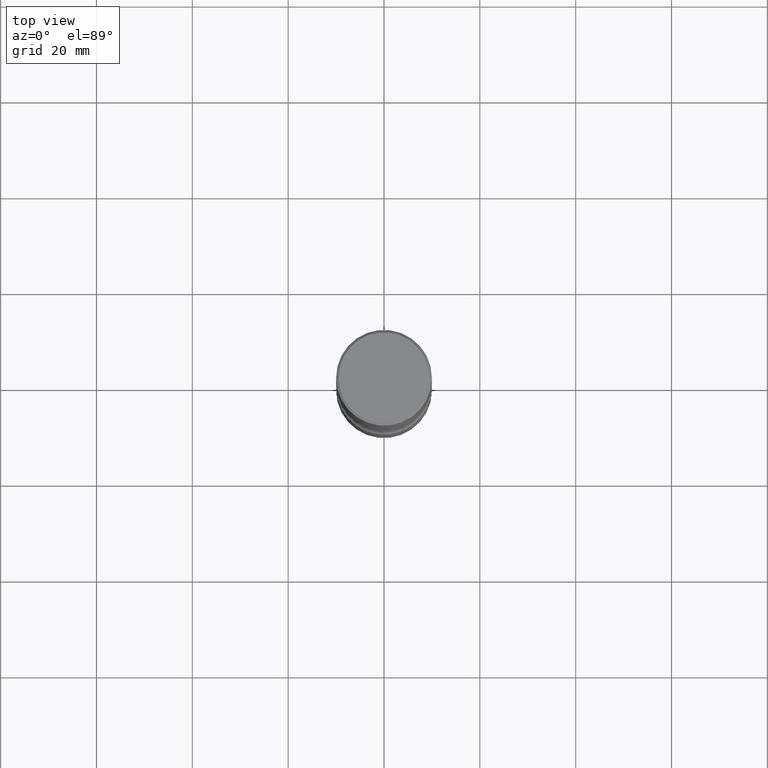
[diagram: clean part render]
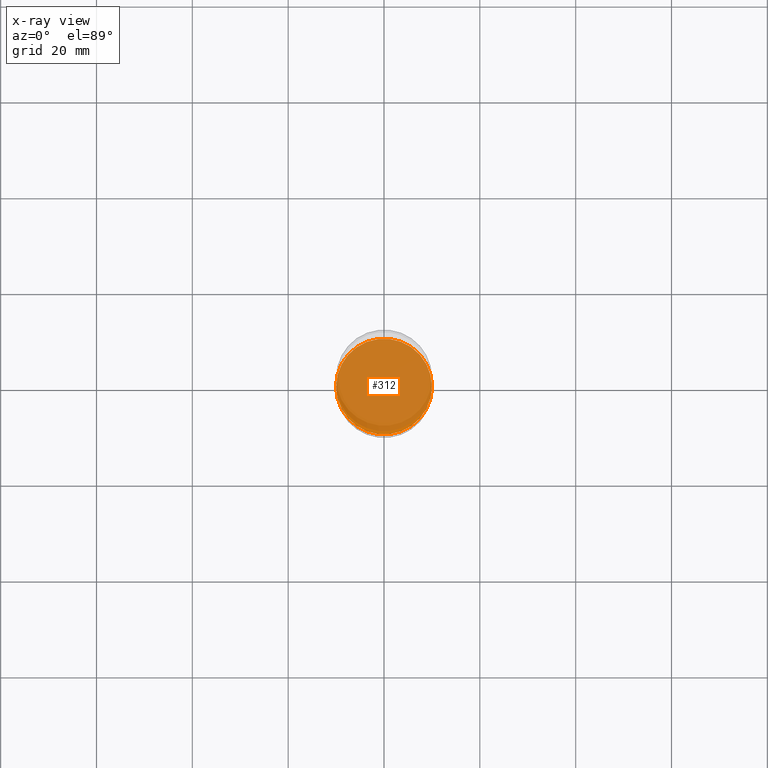
[diagram: x-ray — body ghosted, one internal face saturated and labeled with its STEP entity id]
A machine part, top view, then the same camera in x-ray: the body is ghosted and one INTERNAL B-rep face — a face not visible from any outside direction — is saturated and labeled: STEP entity #312.
In plain terms, the highlighted planar face has unit normal (0, -0, -1).
Its self-contained STEP definition (entity closure, byte-faithful):
#11 = CARTESIAN_POINT ( 'NONE',  ( 1.030178189293550378E-28, -1.470821428801063089E-14, -4.212599999999998346 ) ) ;
#29 = CARTESIAN_POINT ( 'NONE',  ( 1.030178189293550378E-28, -1.470821428801063089E-14, -4.212599999999998346 ) ) ;
#48 = AXIS2_PLACEMENT_3D ( 'NONE', #29, #136, #98 ) ;
#66 = EDGE_CURVE ( 'NONE', #130, #540, #515, .T. ) ;
#67 = FACE_OUTER_BOUND ( 'NONE', #368, .T. ) ;
#93 = CARTESIAN_POINT ( 'NONE',  ( -0.3937000000000002720, -1.479738973421168625E-14, -4.212599999999998346 ) ) ;
#98 = DIRECTION ( 'NONE',  ( -1.000000000000000000, 6.982962677686265922E-15, -4.876176775795935793E-29 ) ) ;
#130 = VERTEX_POINT ( 'NONE', #93 ) ;
#133 = CIRCLE ( 'NONE', #284, 0.3937000000000002720 ) ;
#136 = DIRECTION ( 'NONE',  ( 2.438088387897960049E-29, -3.491481338843145188E-15, -1.000000000000000000 ) ) ;
#143 = PLANE ( 'NONE',  #48 ) ;
#182 = ORIENTED_EDGE ( 'NONE', *, *, #66, .T. ) ;
#193 = ORIENTED_EDGE ( 'NONE', *, *, #509, .T. ) ;
#244 = DIRECTION ( 'NONE',  ( 1.000000000000000000, -6.982962677686269077E-15, 0.000000000000000000 ) ) ;
#247 = CARTESIAN_POINT ( 'NONE',  ( 1.030178189293550378E-28, -1.470821428801063089E-14, -4.212599999999998346 ) ) ;
#271 = AXIS2_PLACEMENT_3D ( 'NONE', #11, #410, #244 ) ;
#284 = AXIS2_PLACEMENT_3D ( 'NONE', #247, #424, #471 ) ;
#312 = ADVANCED_FACE ( 'NONE', ( #67 ), #143, .F. ) ;
#368 = EDGE_LOOP ( 'NONE', ( #193, #182 ) ) ;
#403 = CARTESIAN_POINT ( 'NONE',  ( 0.3937000000000002720, -1.745740669421571411E-14, -4.212599999999998346 ) ) ;
#410 = DIRECTION ( 'NONE',  ( -2.445468806185136597E-29, 3.491481338843145583E-15, 1.000000000000000000 ) ) ;
#424 = DIRECTION ( 'NONE',  ( -2.445468806185136597E-29, 3.491481338843145583E-15, 1.000000000000000000 ) ) ;
#471 = DIRECTION ( 'NONE',  ( 1.000000000000000000, -6.982962677686269077E-15, 0.000000000000000000 ) ) ;
#509 = EDGE_CURVE ( 'NONE', #540, #130, #133, .T. ) ;
#515 = CIRCLE ( 'NONE', #271, 0.3937000000000002720 ) ;
#540 = VERTEX_POINT ( 'NONE', #403 ) ;